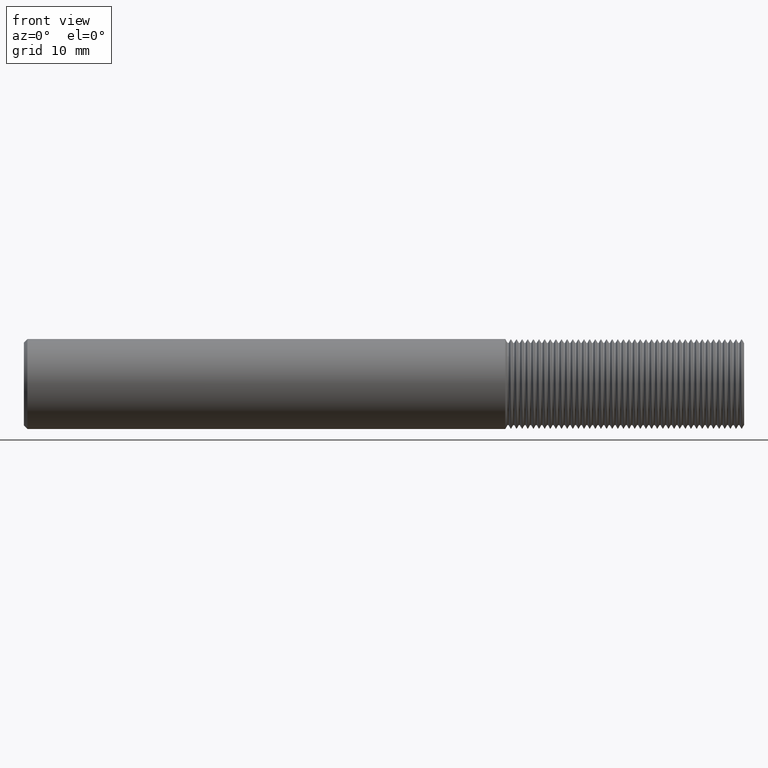
[diagram: clean part render]
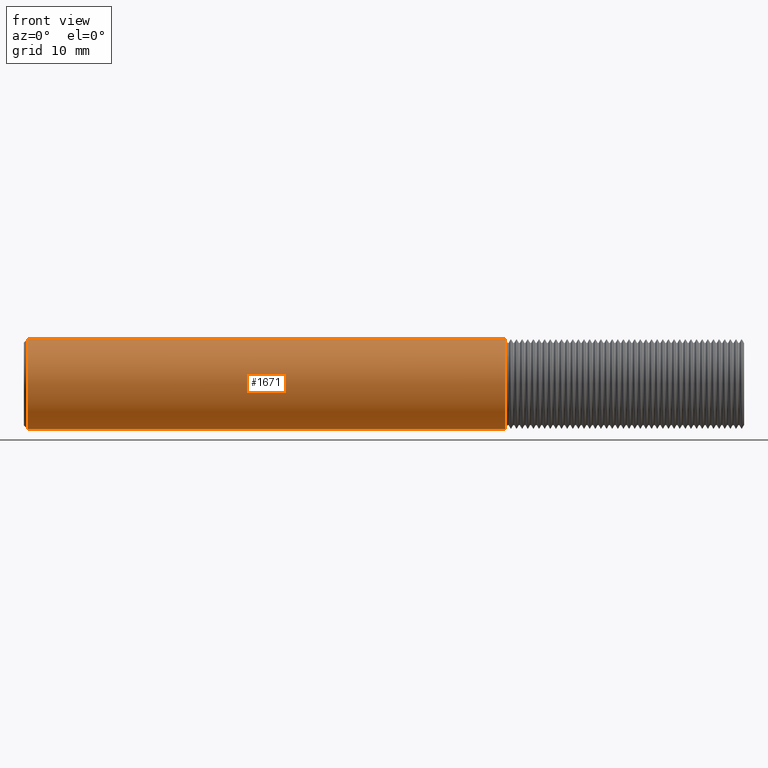
[diagram: same view with one face highlighted and labeled with its STEP entity id]
A machine part, front view. The second image highlights one B-rep face of the part: STEP entity #1671.
In plain terms, the highlighted cylindrical surface (partial cylindrical patch) has radius 6.3462 mm, axis along (1, -0, -0).
Its self-contained STEP definition (entity closure, byte-faithful):
#149 = ORIENTED_EDGE ( 'NONE', *, *, #3728, .F. ) ;
#645 = CARTESIAN_POINT ( 'NONE',  ( 2.673500742313569489, 0.000000000000000000, 0.000000000000000000 ) ) ;
#982 = DIRECTION ( 'NONE',  ( 0.000000000000000000, 0.000000000000000000, 1.000000000000000000 ) ) ;
#1315 = CYLINDRICAL_SURFACE ( 'NONE', #6799, 0.2498499999999999888 ) ;
#1671 = ADVANCED_FACE ( 'NONE', ( #4043 ), #1315, .T. ) ;
#1811 = VERTEX_POINT ( 'NONE', #4094 ) ;
#2002 = VERTEX_POINT ( 'NONE', #3988 ) ;
#2230 = AXIS2_PLACEMENT_3D ( 'NONE', #7687, #7728, #982 ) ;
#2741 = CARTESIAN_POINT ( 'NONE',  ( 0.01999999999999978531, 3.059780027669661931E-17, 0.2498499999999999888 ) ) ;
#3191 = ORIENTED_EDGE ( 'NONE', *, *, #6148, .T. ) ;
#3221 = ORIENTED_EDGE ( 'NONE', *, *, #7016, .T. ) ;
#3423 = DIRECTION ( 'NONE',  ( -1.000000000000000000, -0.000000000000000000, -0.000000000000000000 ) ) ;
#3433 = CARTESIAN_POINT ( 'NONE',  ( 0.01999999999999978531, 0.000000000000000000, -0.2498499999999999888 ) ) ;
#3728 = EDGE_CURVE ( 'NONE', #5163, #2002, #6706, .T. ) ;
#3959 = DIRECTION ( 'NONE',  ( 1.000000000000000000, -0.000000000000000000, -0.000000000000000000 ) ) ;
#3988 = CARTESIAN_POINT ( 'NONE',  ( 2.673500742313569489, 0.000000000000000000, 0.2498499999999996557 ) ) ;
#3993 = DIRECTION ( 'NONE',  ( 1.000000000000000000, -0.000000000000000000, -0.000000000000000000 ) ) ;
#4000 = CARTESIAN_POINT ( 'NONE',  ( 4.000000000000000000, 0.000000000000000000, 0.000000000000000000 ) ) ;
#4043 = FACE_OUTER_BOUND ( 'NONE', #6076, .T. ) ;
#4094 = CARTESIAN_POINT ( 'NONE',  ( 2.673500742313569489, 3.059780027669657616E-17, -0.2498499999999996557 ) ) ;
#4226 = CIRCLE ( 'NONE', #5059, 0.2498499999999999888 ) ;
#4255 = VECTOR ( 'NONE', #4546, 39.37007874015748143 ) ;
#4546 = DIRECTION ( 'NONE',  ( 1.000000000000000000, -0.000000000000000000, -0.000000000000000000 ) ) ;
#5059 = AXIS2_PLACEMENT_3D ( 'NONE', #645, #3423, #7538 ) ;
#5163 = VERTEX_POINT ( 'NONE', #2741 ) ;
#6076 = EDGE_LOOP ( 'NONE', ( #149, #6340, #3191, #3221 ) ) ;
#6146 = CARTESIAN_POINT ( 'NONE',  ( 4.000000000000000000, 0.000000000000000000, -0.2498499999999999888 ) ) ;
#6148 = EDGE_CURVE ( 'NONE', #6562, #1811, #8014, .T. ) ;
#6340 = ORIENTED_EDGE ( 'NONE', *, *, #7928, .T. ) ;
#6562 = VERTEX_POINT ( 'NONE', #3433 ) ;
#6614 = CARTESIAN_POINT ( 'NONE',  ( 4.000000000000000000, 3.059780027669661931E-17, 0.2498499999999999888 ) ) ;
#6706 = LINE ( 'NONE', #6614, #4255 ) ;
#6799 = AXIS2_PLACEMENT_3D ( 'NONE', #4000, #3959, #7355 ) ;
#7016 = EDGE_CURVE ( 'NONE', #1811, #2002, #4226, .T. ) ;
#7018 = VECTOR ( 'NONE', #3993, 39.37007874015748143 ) ;
#7355 = DIRECTION ( 'NONE',  ( 0.000000000000000000, 0.000000000000000000, -1.000000000000000000 ) ) ;
#7538 = DIRECTION ( 'NONE',  ( 0.000000000000000000, 0.000000000000000000, 1.000000000000000000 ) ) ;
#7687 = CARTESIAN_POINT ( 'NONE',  ( 0.01999999999999978531, 0.000000000000000000, 0.000000000000000000 ) ) ;
#7728 = DIRECTION ( 'NONE',  ( 1.000000000000000000, -0.000000000000000000, -0.000000000000000000 ) ) ;
#7928 = EDGE_CURVE ( 'NONE', #5163, #6562, #8705, .T. ) ;
#8014 = LINE ( 'NONE', #6146, #7018 ) ;
#8705 = CIRCLE ( 'NONE', #2230, 0.2498499999999999888 ) ;